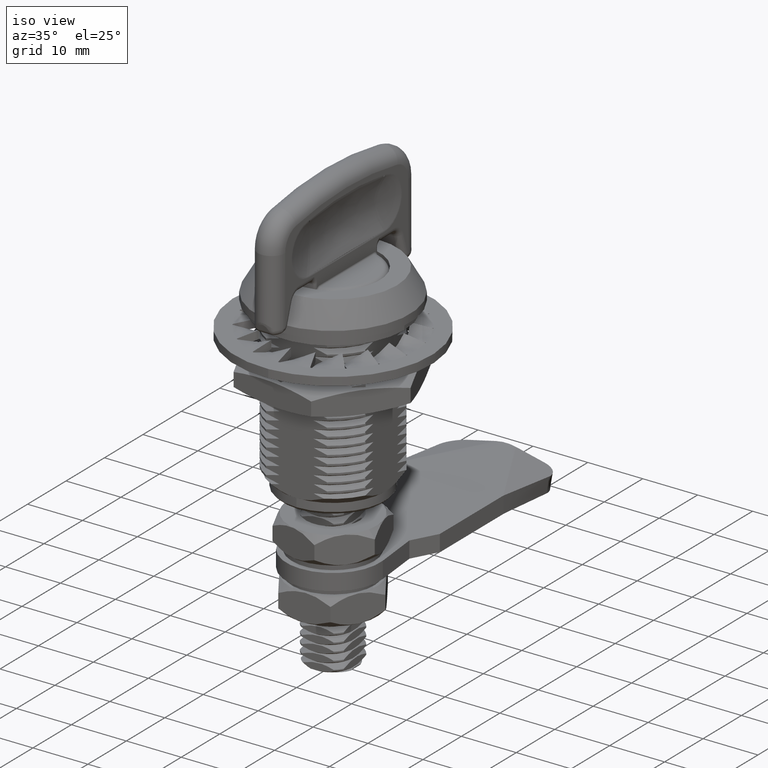
[diagram: clean part render]
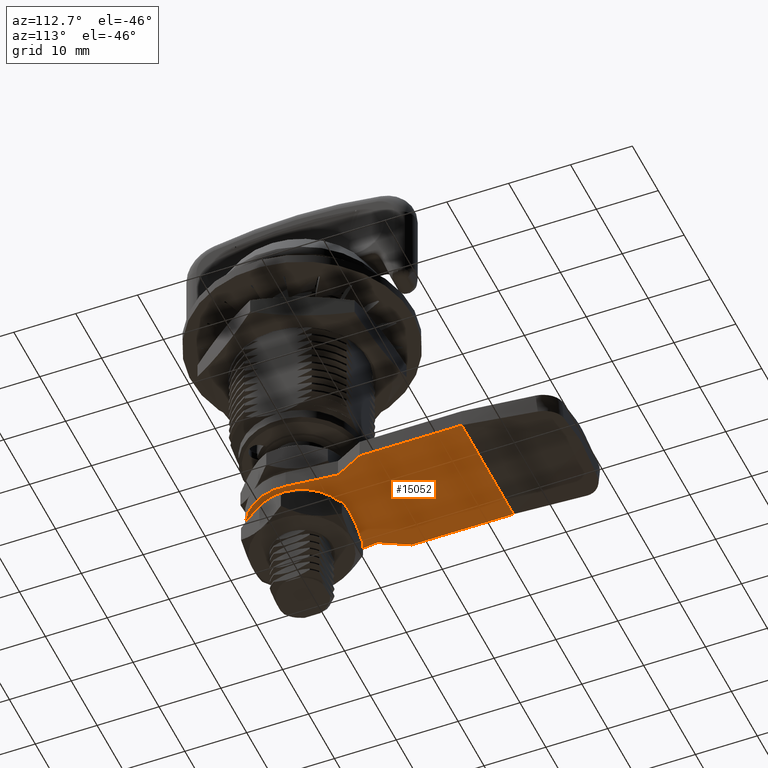
[diagram: tour spotlight — one face highlighted and labeled with its STEP entity id]
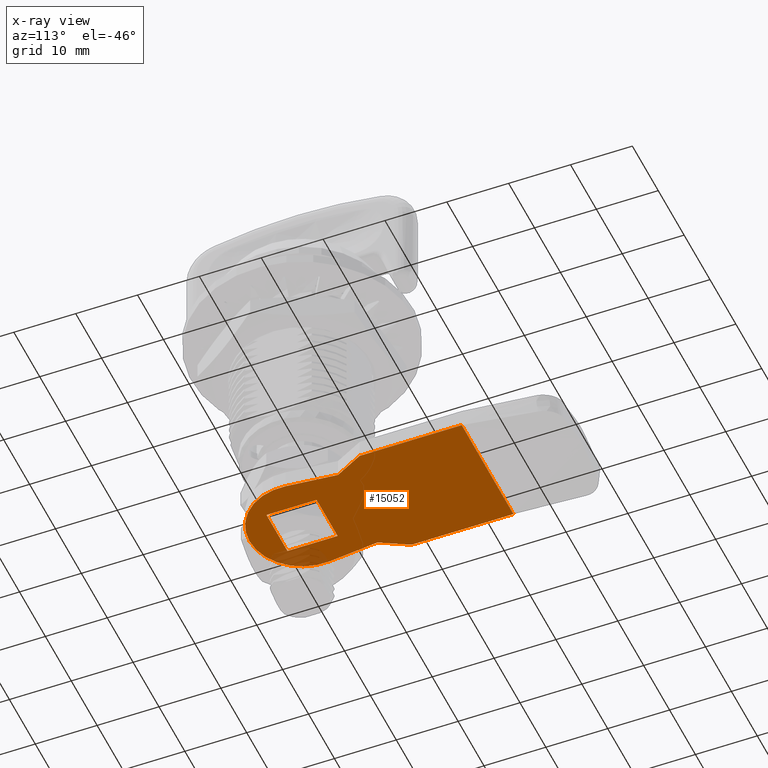
[diagram: x-ray of the same camera — body ghosted, this tour face saturated]
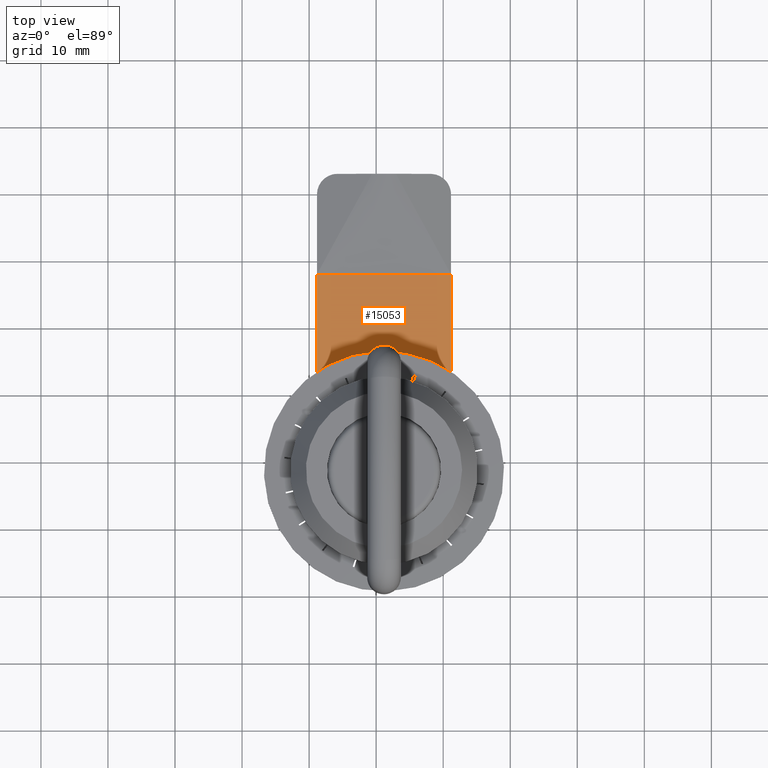
[diagram: tour spotlight — one face highlighted and labeled with its STEP entity id]
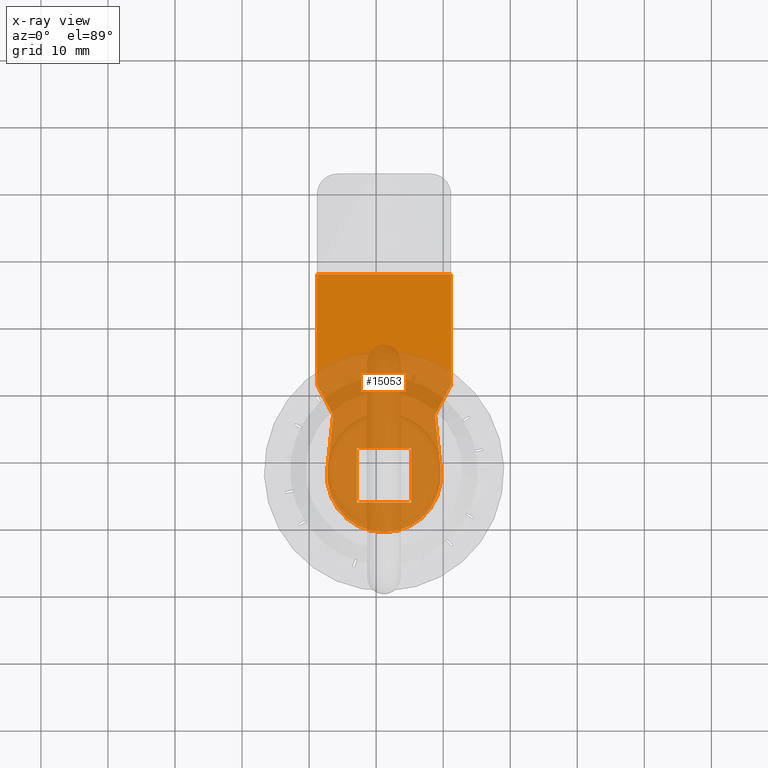
[diagram: x-ray of the same camera — body ghosted, this tour face saturated]
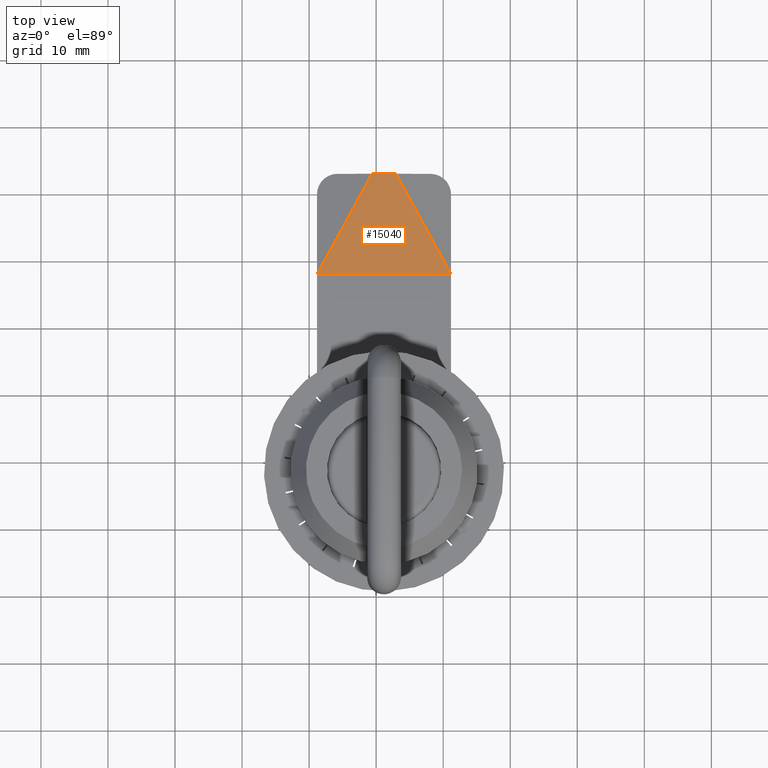
[diagram: tour spotlight — one face highlighted and labeled with its STEP entity id]
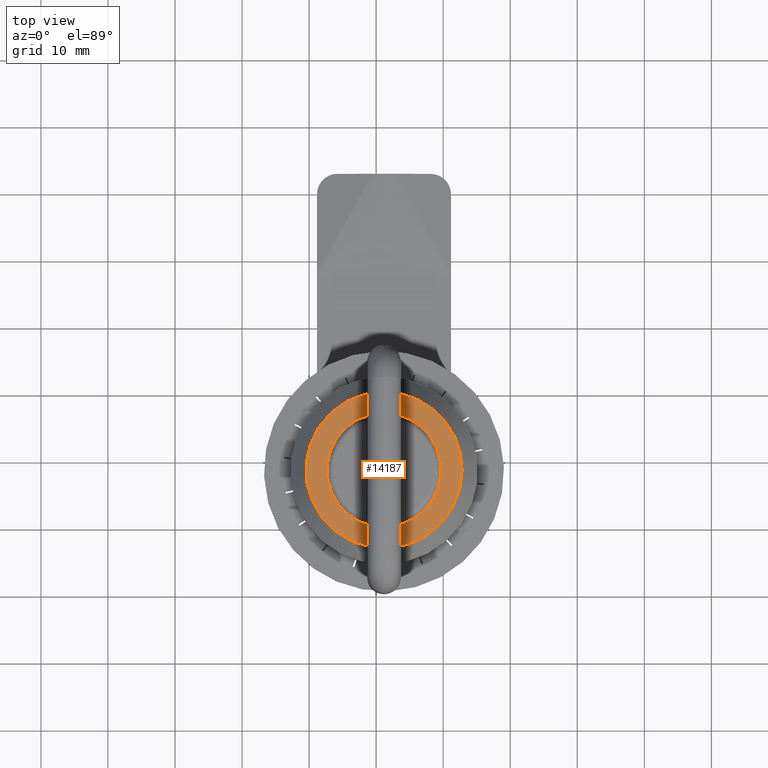
[diagram: tour spotlight — one face highlighted and labeled with its STEP entity id]
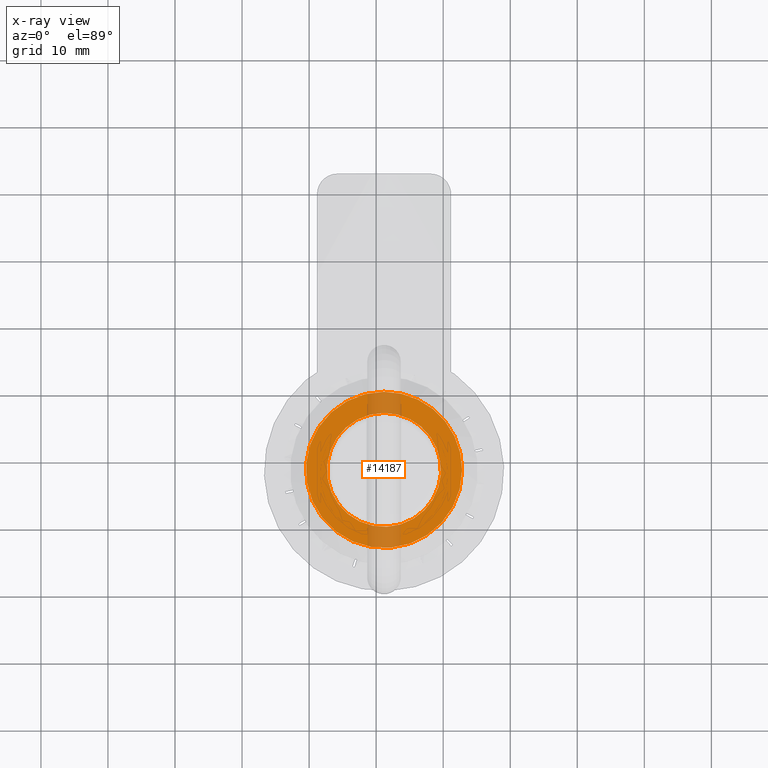
[diagram: x-ray of the same camera — body ghosted, this tour face saturated]
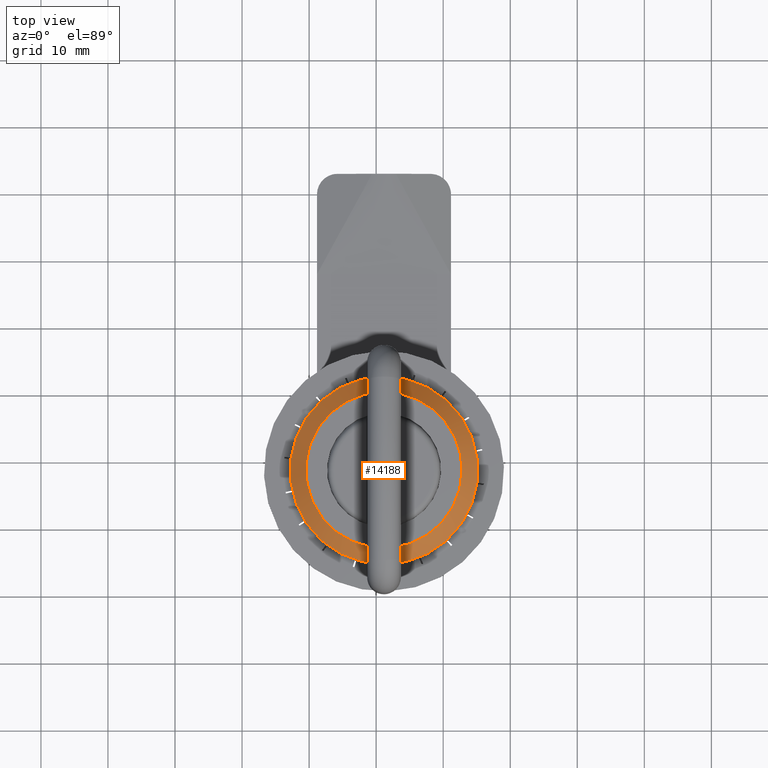
[diagram: tour spotlight — one face highlighted and labeled with its STEP entity id]
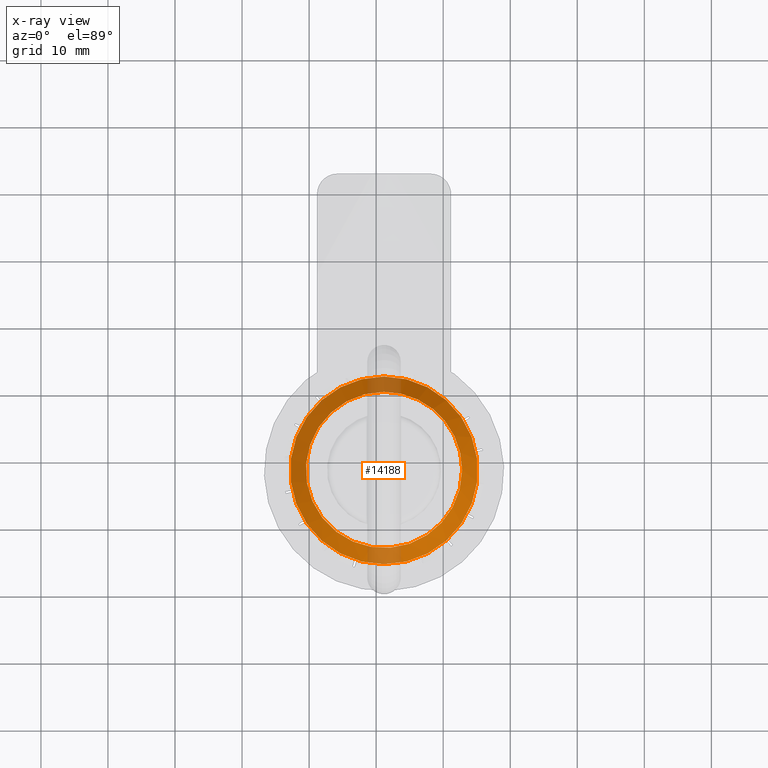
[diagram: x-ray of the same camera — body ghosted, this tour face saturated]
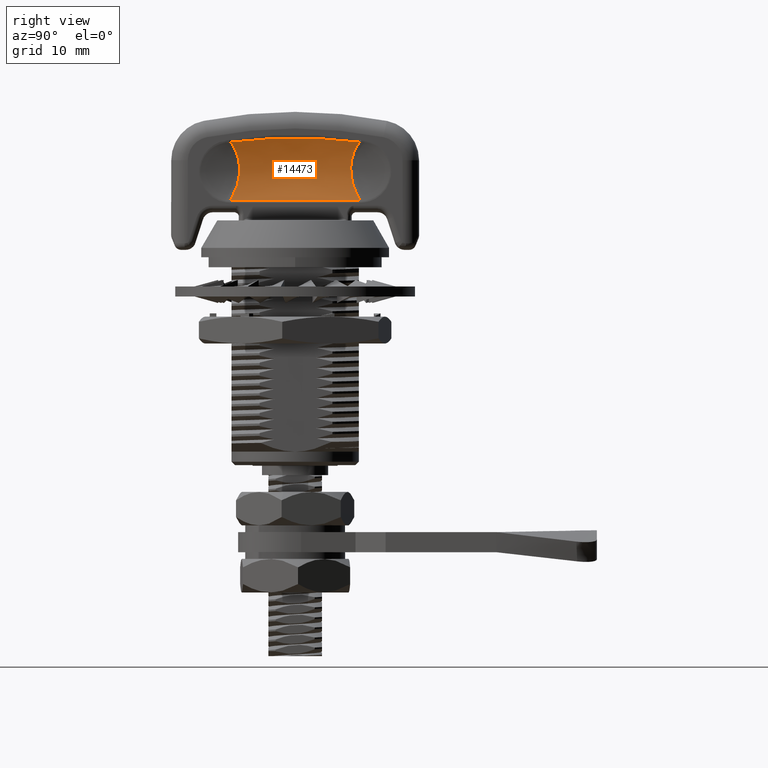
[diagram: tour spotlight — one face highlighted and labeled with its STEP entity id]
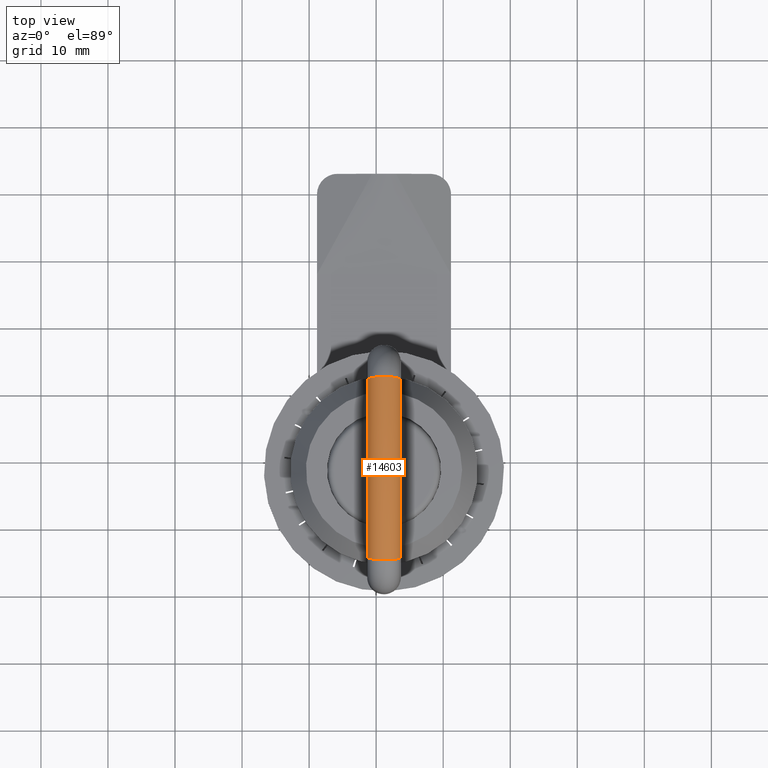
[diagram: tour spotlight — one face highlighted and labeled with its STEP entity id]
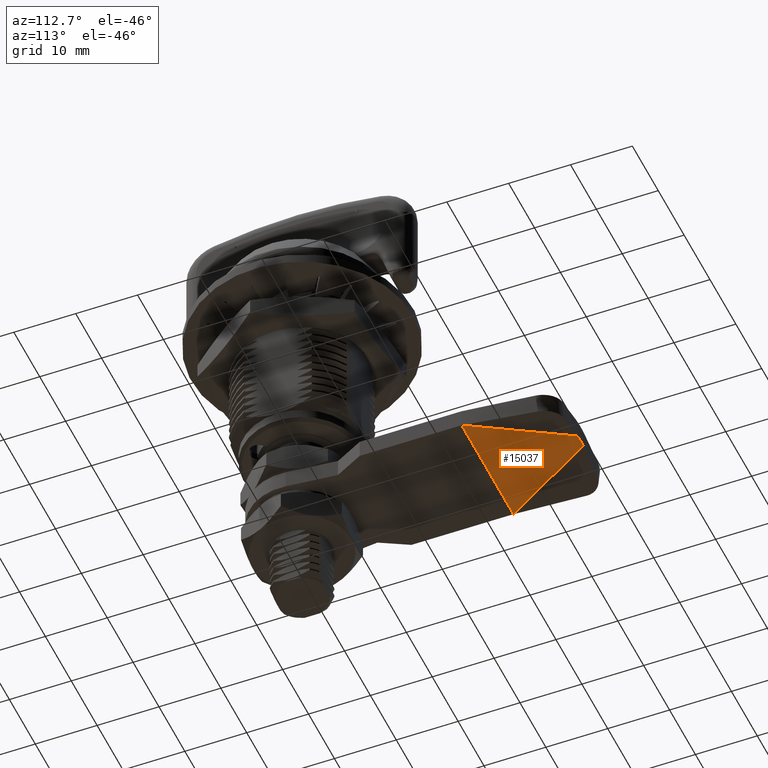
[diagram: tour spotlight — one face highlighted and labeled with its STEP entity id]
A machine part: a face-by-face anatomy tour. The part has 955 B-rep faces; the first image is the clean iso view, then the 8 largest visible faces are spotlighted one at a time (largest first), each with its STEP entity span.

Face 1 — auxiliary view, entity #15052. An x-ray twin of the same camera follows (body ghosted, this face saturated) — the face is partly hidden behind the body. In plain terms, the highlighted planar face has unit normal (0, 0, 1).
Definition (entity closure, byte-faithful):
#2684=LINE('',#84766,#3363);
#2691=LINE('',#84811,#3370);
#2694=LINE('',#84817,#3373);
#2697=LINE('',#84823,#3376);
#2700=LINE('',#84827,#3379);
#2703=LINE('',#84835,#3382);
#2706=LINE('',#84839,#3385);
#2709=LINE('',#84845,#3388);
#2712=LINE('',#84851,#3391);
#2715=LINE('',#84857,#3394);
#2718=LINE('',#84866,#3397);
#3363=VECTOR('',#18387,20.);
#3370=VECTOR('',#18398,8.1);
#3373=VECTOR('',#18403,8.1);
#3376=VECTOR('',#18408,8.1);
#3379=VECTOR('',#18413,8.1);
#3382=VECTOR('',#18418,5.1);
#3385=VECTOR('',#18423,16.5);
#3388=VECTOR('',#18428,16.5);
#3391=VECTOR('',#18433,5.1);
#3394=VECTOR('',#18438,8.15536633144091);
#3397=VECTOR('',#18449,8.15536633144091);
#3488=FACE_BOUND('',#5281,.T.);
#4355=FACE_OUTER_BOUND('',#5280,.T.);
#5280=EDGE_LOOP('',(#13928,#13929,#13930,#13931,#13932,#13933,#13934,#13935));
#5281=EDGE_LOOP('',(#13936,#13937,#13938,#13939));
#5558=CIRCLE('',#15959,8.5);
#7029=VERTEX_POINT('',#84725);
#7031=VERTEX_POINT('',#84765);
#7034=VERTEX_POINT('',#84808);
#7035=VERTEX_POINT('',#84810);
#7037=VERTEX_POINT('',#84816);
#7039=VERTEX_POINT('',#84822);
#7042=VERTEX_POINT('',#84832);
#7043=VERTEX_POINT('',#84834);
#7045=VERTEX_POINT('',#84843);
#7047=VERTEX_POINT('',#84849);
#7049=VERTEX_POINT('',#84855);
#7051=VERTEX_POINT('',#84861);
#9315=EDGE_CURVE('',#7031,#7029,#2684,.T.);
#9322=EDGE_CURVE('',#7035,#7034,#2691,.T.);
#9325=EDGE_CURVE('',#7037,#7035,#2694,.T.);
#9328=EDGE_CURVE('',#7039,#7037,#2697,.T.);
#9331=EDGE_CURVE('',#7034,#7039,#2700,.T.);
#9334=EDGE_CURVE('',#7042,#7043,#2703,.T.);
#9337=EDGE_CURVE('',#7029,#7042,#2706,.T.);
#9340=EDGE_CURVE('',#7045,#7031,#2709,.T.);
#9343=EDGE_CURVE('',#7047,#7045,#2712,.T.);
#9346=EDGE_CURVE('',#7049,#7047,#2715,.T.);
#9349=EDGE_CURVE('',#7051,#7049,#5558,.T.);
#9351=EDGE_CURVE('',#7043,#7051,#2718,.T.);
#13928=ORIENTED_EDGE('',*,*,#9351,.F.);
#13929=ORIENTED_EDGE('',*,*,#9334,.F.);
#13930=ORIENTED_EDGE('',*,*,#9337,.F.);
#13931=ORIENTED_EDGE('',*,*,#9315,.F.);
#13932=ORIENTED_EDGE('',*,*,#9340,.F.);
#13933=ORIENTED_EDGE('',*,*,#9343,.F.);
#13934=ORIENTED_EDGE('',*,*,#9346,.F.);
#13935=ORIENTED_EDGE('',*,*,#9349,.F.);
#13936=ORIENTED_EDGE('',*,*,#9322,.T.);
#13937=ORIENTED_EDGE('',*,*,#9331,.T.);
#13938=ORIENTED_EDGE('',*,*,#9328,.T.);
#13939=ORIENTED_EDGE('',*,*,#9325,.T.);
#14185=PLANE('',#15961);
#15052=ADVANCED_FACE('',(#4355,#3488),#14185,.F.);
#15959=AXIS2_PLACEMENT_3D('',#84863,#18444,#18445);
#15961=AXIS2_PLACEMENT_3D('',#84867,#18450,#18451);
#18387=DIRECTION('',(-1.,0.,0.));
#18398=DIRECTION('',(0.,1.,0.));
#18403=DIRECTION('',(1.,1.37064570941377E-16,0.));
#18408=DIRECTION('',(0.,-1.,0.));
#18413=DIRECTION('',(-1.,0.,0.));
#18418=DIRECTION('',(0.470588235294118,-0.88235294117647,0.));
#18423=DIRECTION('',(0.,-1.,0.));
#18428=DIRECTION('',(0.,1.,0.));
#18433=DIRECTION('',(0.470588235294118,0.88235294117647,0.));
#18438=DIRECTION('',(-0.104635456046765,0.994510644155147,0.));
#18444=DIRECTION('center_axis',(0.,0.,1.));
#18445=DIRECTION('ref_axis',(-0.994510644155147,0.104635456046764,0.));
#18449=DIRECTION('',(-0.104635456046765,-0.994510644155147,0.));
#18450=DIRECTION('center_axis',(0.,0.,1.));
#18451=DIRECTION('ref_axis',(1.,0.,0.));
#84725=CARTESIAN_POINT('',(-10.,30.,0.));
#84765=CARTESIAN_POINT('',(10.,30.,0.));
#84766=CARTESIAN_POINT('',(10.,30.,0.));
#84808=CARTESIAN_POINT('',(4.05,4.05,0.));
#84810=CARTESIAN_POINT('',(4.05,-4.05,0.));
#84811=CARTESIAN_POINT('',(4.05,8.44205728037755,0.));
#84816=CARTESIAN_POINT('',(-4.05,-4.05,0.));
#84817=CARTESIAN_POINT('',(2.025,-4.05,0.));
#84822=CARTESIAN_POINT('',(-4.05,4.05,0.));
#84823=CARTESIAN_POINT('',(-4.05,4.39205728037755,0.));
#84827=CARTESIAN_POINT('',(-2.025,4.05,0.));
#84832=CARTESIAN_POINT('',(-10.,13.5,0.));
#84834=CARTESIAN_POINT('',(-7.6,9.,0.));
#84835=CARTESIAN_POINT('',(-10.,13.5,0.));
#84839=CARTESIAN_POINT('',(-10.,30.,0.));
#84843=CARTESIAN_POINT('',(10.,13.5,0.));
#84845=CARTESIAN_POINT('',(10.,13.5,0.));
#84849=CARTESIAN_POINT('',(7.6,9.,0.));
#84851=CARTESIAN_POINT('',(7.6,9.,0.));
#84855=CARTESIAN_POINT('',(8.45334047531875,0.889401376397498,0.));
#84857=CARTESIAN_POINT('',(8.45334047531875,0.889401376397498,0.));
#84861=CARTESIAN_POINT('',(-8.45334047531875,0.889401376397498,0.));
#84863=CARTESIAN_POINT('Origin',(0.,0.,0.));
#84866=CARTESIAN_POINT('',(-7.6,9.,0.));
#84867=CARTESIAN_POINT('Origin',(-1.54923644048016E-16,12.8341145607551,
0.));

Face 2 — top view, entity #15053. An x-ray twin of the same camera follows (body ghosted, this face saturated) — the face is partly hidden behind the body. In plain terms, the highlighted planar face has unit normal (0, 0, 1).
Definition (entity closure, byte-faithful):
#2688=LINE('',#84803,#3367);
#2689=LINE('',#84807,#3368);
#2693=LINE('',#84815,#3372);
#2696=LINE('',#84821,#3375);
#2699=LINE('',#84826,#3378);
#2701=LINE('',#84831,#3380);
#2705=LINE('',#84838,#3384);
#2707=LINE('',#84842,#3386);
#2710=LINE('',#84848,#3389);
#2713=LINE('',#84854,#3392);
#2717=LINE('',#84865,#3396);
#3367=VECTOR('',#18393,20.);
#3368=VECTOR('',#18396,8.1);
#3372=VECTOR('',#18402,8.1);
#3375=VECTOR('',#18407,8.1);
#3378=VECTOR('',#18412,8.1);
#3380=VECTOR('',#18416,5.1);
#3384=VECTOR('',#18422,16.5);
#3386=VECTOR('',#18426,16.5);
#3389=VECTOR('',#18431,5.1);
#3392=VECTOR('',#18436,8.15536633144091);
#3396=VECTOR('',#18448,8.15536633144091);
#3489=FACE_BOUND('',#5283,.T.);
#4356=FACE_OUTER_BOUND('',#5282,.T.);
#5282=EDGE_LOOP('',(#13940,#13941,#13942,#13943,#13944,#13945,#13946,#13947));
#5283=EDGE_LOOP('',(#13948,#13949,#13950,#13951));
#5557=CIRCLE('',#15958,8.5);
#7021=VERTEX_POINT('',#84660);
#7030=VERTEX_POINT('',#84729);
#7032=VERTEX_POINT('',#84805);
#7033=VERTEX_POINT('',#84806);
#7036=VERTEX_POINT('',#84814);
#7038=VERTEX_POINT('',#84820);
#7040=VERTEX_POINT('',#84829);
#7041=VERTEX_POINT('',#84830);
#7044=VERTEX_POINT('',#84841);
#7046=VERTEX_POINT('',#84847);
#7048=VERTEX_POINT('',#84853);
#7050=VERTEX_POINT('',#84859);
#9319=EDGE_CURVE('',#7030,#7021,#2688,.T.);
#9320=EDGE_CURVE('',#7032,#7033,#2689,.T.);
#9324=EDGE_CURVE('',#7033,#7036,#2693,.T.);
#9327=EDGE_CURVE('',#7036,#7038,#2696,.T.);
#9330=EDGE_CURVE('',#7038,#7032,#2699,.T.);
#9332=EDGE_CURVE('',#7040,#7041,#2701,.T.);
#9336=EDGE_CURVE('',#7041,#7030,#2705,.T.);
#9338=EDGE_CURVE('',#7021,#7044,#2707,.T.);
#9341=EDGE_CURVE('',#7044,#7046,#2710,.T.);
#9344=EDGE_CURVE('',#7046,#7048,#2713,.T.);
#9347=EDGE_CURVE('',#7048,#7050,#5557,.T.);
#9350=EDGE_CURVE('',#7050,#7040,#2717,.T.);
#13940=ORIENTED_EDGE('',*,*,#9332,.F.);
#13941=ORIENTED_EDGE('',*,*,#9350,.F.);
#13942=ORIENTED_EDGE('',*,*,#9347,.F.);
#13943=ORIENTED_EDGE('',*,*,#9344,.F.);
#13944=ORIENTED_EDGE('',*,*,#9341,.F.);
#13945=ORIENTED_EDGE('',*,*,#9338,.F.);
#13946=ORIENTED_EDGE('',*,*,#9319,.F.);
#13947=ORIENTED_EDGE('',*,*,#9336,.F.);
#13948=ORIENTED_EDGE('',*,*,#9320,.T.);
#13949=ORIENTED_EDGE('',*,*,#9324,.T.);
#13950=ORIENTED_EDGE('',*,*,#9327,.T.);
#13951=ORIENTED_EDGE('',*,*,#9330,.T.);
#14186=PLANE('',#15962);
#15053=ADVANCED_FACE('',(#4356,#3489),#14186,.T.);
#15958=AXIS2_PLACEMENT_3D('',#84860,#18441,#18442);
#15962=AXIS2_PLACEMENT_3D('',#84868,#18452,#18453);
#18393=DIRECTION('',(1.,0.,0.));
#18396=DIRECTION('',(0.,-1.,0.));
#18402=DIRECTION('',(-1.,-1.37064570941377E-16,0.));
#18407=DIRECTION('',(0.,1.,0.));
#18412=DIRECTION('',(1.,0.,0.));
#18416=DIRECTION('',(-0.470588235294118,0.88235294117647,0.));
#18422=DIRECTION('',(0.,1.,0.));
#18426=DIRECTION('',(0.,-1.,0.));
#18431=DIRECTION('',(-0.470588235294118,-0.88235294117647,0.));
#18436=DIRECTION('',(0.104635456046765,-0.994510644155147,0.));
#18441=DIRECTION('center_axis',(0.,0.,-1.));
#18442=DIRECTION('ref_axis',(-0.994510644155147,0.104635456046764,0.));
#18448=DIRECTION('',(0.104635456046765,0.994510644155147,0.));
#18452=DIRECTION('center_axis',(0.,0.,1.));
#18453=DIRECTION('ref_axis',(1.,0.,0.));
#84660=CARTESIAN_POINT('',(10.,30.,3.));
#84729=CARTESIAN_POINT('',(-10.,30.,3.));
#84803=CARTESIAN_POINT('',(10.,30.,3.));
#84805=CARTESIAN_POINT('',(4.05,4.05,3.));
#84806=CARTESIAN_POINT('',(4.05,-4.05,3.));
#84807=CARTESIAN_POINT('',(4.05,8.44205728037755,3.));
#84814=CARTESIAN_POINT('',(-4.05,-4.05,3.));
#84815=CARTESIAN_POINT('',(2.025,-4.05,3.));
#84820=CARTESIAN_POINT('',(-4.05,4.05,3.));
#84821=CARTESIAN_POINT('',(-4.05,4.39205728037755,3.));
#84826=CARTESIAN_POINT('',(-2.025,4.05,3.));
#84829=CARTESIAN_POINT('',(-7.6,9.,3.));
#84830=CARTESIAN_POINT('',(-10.,13.5,3.));
#84831=CARTESIAN_POINT('',(-10.,13.5,3.));
#84838=CARTESIAN_POINT('',(-10.,30.,3.));
#84841=CARTESIAN_POINT('',(10.,13.5,3.));
#84842=CARTESIAN_POINT('',(10.,13.5,3.));
#84847=CARTESIAN_POINT('',(7.6,9.,3.));
#84848=CARTESIAN_POINT('',(7.6,9.,3.));
#84853=CARTESIAN_POINT('',(8.45334047531875,0.889401376397498,3.));
#84854=CARTESIAN_POINT('',(8.45334047531875,0.889401376397498,3.));
#84859=CARTESIAN_POINT('',(-8.45334047531875,0.889401376397498,3.));
#84860=CARTESIAN_POINT('Origin',(0.,0.,3.));
#84865=CARTESIAN_POINT('',(-7.6,9.,3.));
#84868=CARTESIAN_POINT('Origin',(0.,12.8341145607551,3.));

Face 3 — top view, entity #15040. In plain terms, the highlighted face is a freeform B-spline surface patch.
Definition (entity closure, byte-faithful):
#192=ELLIPSE('',#15943,6.96347798746227,6.01095277535137);
#499=B_SPLINE_SURFACE_WITH_KNOTS('',3,3,((#84787,#84788,#84789,#84790),
(#84791,#84792,#84793,#84794),(#84795,#84796,#84797,#84798),(#84799,#84800,
#84801,#84802)),.UNSPECIFIED.,.F.,.F.,.F.,(4,4),(4,4),(0.,1.),(0.,1.),
 .UNSPECIFIED.);
#2674=LINE('',#84661,#3353);
#2682=LINE('',#84731,#3361);
#2688=LINE('',#84803,#3367);
#3353=VECTOR('',#18363,17.1055381208375);
#3361=VECTOR('',#18385,17.1055381208375);
#3367=VECTOR('',#18393,20.);
#4343=FACE_OUTER_BOUND('',#5268,.T.);
#5268=EDGE_LOOP('',(#13880,#13881,#13882,#13883));
#7020=VERTEX_POINT('',#84658);
#7021=VERTEX_POINT('',#84660);
#7026=VERTEX_POINT('',#84672);
#7030=VERTEX_POINT('',#84729);
#9299=EDGE_CURVE('',#7021,#7020,#2674,.T.);
#9306=EDGE_CURVE('',#7020,#7026,#192,.T.);
#9313=EDGE_CURVE('',#7030,#7026,#2682,.T.);
#9319=EDGE_CURVE('',#7030,#7021,#2688,.T.);
#13880=ORIENTED_EDGE('',*,*,#9319,.T.);
#13881=ORIENTED_EDGE('',*,*,#9299,.T.);
#13882=ORIENTED_EDGE('',*,*,#9306,.T.);
#13883=ORIENTED_EDGE('',*,*,#9313,.F.);
#15040=ADVANCED_FACE('',(#4343),#499,.F.);
#15943=AXIS2_PLACEMENT_3D('',#84674,#18374,#18375);
#18363=DIRECTION('',(-0.480621088621186,0.876908980824603,0.0058316825824785));
#18374=DIRECTION('center_axis',(0.,-1.,0.));
#18375=DIRECTION('ref_axis',(1.,0.,-4.81639417379117E-14));
#18385=DIRECTION('',(0.480621088621187,0.876908980824602,0.00583168258247857));
#18393=DIRECTION('',(1.,0.,0.));
#84658=CARTESIAN_POINT('',(1.77871764691188,45.,3.09975406872321));
#84660=CARTESIAN_POINT('',(10.,30.,3.));
#84661=CARTESIAN_POINT('',(10.,30.,3.));
#84672=CARTESIAN_POINT('',(-1.77871764691187,45.,3.09975406872321));
#84674=CARTESIAN_POINT('Origin',(1.00475183728577E-13,45.,-2.71179237158873));
#84729=CARTESIAN_POINT('',(-10.,30.,3.));
#84731=CARTESIAN_POINT('',(-10.,30.,3.));
#84787=CARTESIAN_POINT('Ctrl Pts',(10.,30.,3.));
#84788=CARTESIAN_POINT('Ctrl Pts',(7.25957254897063,35.,3.03325135624107));
#84789=CARTESIAN_POINT('Ctrl Pts',(4.51914509794125,40.,3.06650271248214));
#84790=CARTESIAN_POINT('Ctrl Pts',(1.77871764691188,45.,3.09975406872321));
#84791=CARTESIAN_POINT('Ctrl Pts',(3.33333333333333,30.,3.));
#84792=CARTESIAN_POINT('Ctrl Pts',(2.42651480761471,35.,3.12219661530419));
#84793=CARTESIAN_POINT('Ctrl Pts',(1.51966226284821,40.,3.24343256680492));
#84794=CARTESIAN_POINT('Ctrl Pts',(0.61284373712959,45.,3.36562918210911));
#84795=CARTESIAN_POINT('Ctrl Pts',(-3.33333333333333,30.,3.));
#84796=CARTESIAN_POINT('Ctrl Pts',(-2.42651480761471,35.,3.12219661530419));
#84797=CARTESIAN_POINT('Ctrl Pts',(-1.51966226284821,40.,3.24343256680492));
#84798=CARTESIAN_POINT('Ctrl Pts',(-0.612843737129586,45.,3.36562918210911));
#84799=CARTESIAN_POINT('Ctrl Pts',(-10.,30.,3.));
#84800=CARTESIAN_POINT('Ctrl Pts',(-7.25957254897062,35.,3.03325135624107));
#84801=CARTESIAN_POINT('Ctrl Pts',(-4.51914509794125,40.,3.06650271248214));
#84802=CARTESIAN_POINT('Ctrl Pts',(-1.77871764691187,45.,3.09975406872321));
#84803=CARTESIAN_POINT('',(10.,30.,3.));

Face 4 — top view, entity #14187. An x-ray twin of the same camera follows (body ghosted, this face saturated) — the face is partly hidden behind the body. In plain terms, the highlighted planar face has unit normal (0, 0, 1).
Definition (entity closure, byte-faithful):
#3430=FACE_BOUND('',#4358,.T.);
#3490=FACE_OUTER_BOUND('',#4357,.T.);
#4357=EDGE_LOOP('',(#9352));
#4358=EDGE_LOOP('',(#9353));
#5284=CIRCLE('',#15065,11.65);
#5285=CIRCLE('',#15066,8.5);
#5559=VERTEX_POINT('',#18480);
#5560=VERTEX_POINT('',#18482);
#7052=EDGE_CURVE('',#5559,#5559,#5284,.T.);
#7053=EDGE_CURVE('',#5560,#5560,#5285,.T.);
#9352=ORIENTED_EDGE('',*,*,#7052,.F.);
#9353=ORIENTED_EDGE('',*,*,#7053,.T.);
#13952=PLANE('',#15064);
#14187=ADVANCED_FACE('',(#3490,#3430),#13952,.T.);
#15064=AXIS2_PLACEMENT_3D('',#18479,#15977,#15978);
#15065=AXIS2_PLACEMENT_3D('',#18481,#15979,#15980);
#15066=AXIS2_PLACEMENT_3D('',#18483,#15981,#15982);
#15977=DIRECTION('center_axis',(0.,1.,0.));
#15978=DIRECTION('ref_axis',(0.,0.,1.));
#15979=DIRECTION('center_axis',(0.,-1.,0.));
#15980=DIRECTION('ref_axis',(1.,0.,0.));
#15981=DIRECTION('center_axis',(0.,-1.,0.));
#15982=DIRECTION('ref_axis',(1.,0.,0.));
#18479=CARTESIAN_POINT('Origin',(-11.65,5.5,0.));
#18480=CARTESIAN_POINT('',(11.65,5.5,1.42671352100667E-15));
#18481=CARTESIAN_POINT('Origin',(0.,5.5,0.));
#18482=CARTESIAN_POINT('',(-1.04094977927525E-15,5.5,-8.5));
#18483=CARTESIAN_POINT('Origin',(0.,5.5,0.));

Face 5 — top view, entity #14188. An x-ray twin of the same camera follows (body ghosted, this face saturated) — the face is partly hidden behind the body. In plain terms, the highlighted conical surface has half-angle 29.82 deg.
Definition (entity closure, byte-faithful):
#3398=CONICAL_SURFACE('',#15067,12.825,0.520458449451149);
#3431=FACE_BOUND('',#4360,.T.);
#3491=FACE_OUTER_BOUND('',#4359,.T.);
#4359=EDGE_LOOP('',(#9354));
#4360=EDGE_LOOP('',(#9355));
#5284=CIRCLE('',#15065,11.65);
#5286=CIRCLE('',#15068,14.);
#5559=VERTEX_POINT('',#18480);
#5561=VERTEX_POINT('',#18485);
#7052=EDGE_CURVE('',#5559,#5559,#5284,.T.);
#7054=EDGE_CURVE('',#5561,#5561,#5286,.T.);
#9354=ORIENTED_EDGE('',*,*,#7052,.T.);
#9355=ORIENTED_EDGE('',*,*,#7054,.F.);
#14188=ADVANCED_FACE('',(#3491,#3431),#3398,.T.);
#15065=AXIS2_PLACEMENT_3D('',#18481,#15979,#15980);
#15067=AXIS2_PLACEMENT_3D('',#18484,#15983,#15984);
#15068=AXIS2_PLACEMENT_3D('',#18486,#15985,#15986);
#15979=DIRECTION('center_axis',(0.,-1.,0.));
#15980=DIRECTION('ref_axis',(1.,0.,0.));
#15983=DIRECTION('center_axis',(0.,-1.,0.));
#15984=DIRECTION('ref_axis',(-1.,0.,0.));
#15985=DIRECTION('center_axis',(0.,-1.,0.));
#15986=DIRECTION('ref_axis',(1.,0.,0.));
#18480=CARTESIAN_POINT('',(11.65,5.5,1.42671352100667E-15));
#18481=CARTESIAN_POINT('Origin',(0.,5.5,0.));
#18484=CARTESIAN_POINT('Origin',(0.,3.45,0.));
#18485=CARTESIAN_POINT('',(-1.71450551880629E-15,1.4,-14.));
#18486=CARTESIAN_POINT('Origin',(0.,1.4,0.));

Face 6 — right view, entity #14473. In plain terms, the highlighted face is a freeform B-spline surface patch.
Definition (entity closure, byte-faithful):
#385=B_SPLINE_SURFACE_WITH_KNOTS('',3,3,((#62037,#62038,#62039,#62040,#62041),
(#62042,#62043,#62044,#62045,#62046),(#62047,#62048,#62049,#62050,#62051),
(#62052,#62053,#62054,#62055,#62056),(#62057,#62058,#62059,#62060,#62061)),
 .UNSPECIFIED.,.F.,.F.,.F.,(4,1,4),(4,1,4),(0.006979582228411,0.464069123009,
0.9886932273524),(0.2043446376719,0.5,0.7956553468071),.UNSPECIFIED.);
#1125=B_SPLINE_CURVE_WITH_KNOTS('',3,(#60722,#60723,#60724,#60725,#60726,
#60727,#60728,#60729,#60730,#60731,#60732,#60733,#60734,#60735,#60736,#60737,
#60738,#60739,#60740,#60741,#60742,#60743,#60744,#60745,#60746,#60747,#60748,
#60749,#60750,#60751,#60752),.UNSPECIFIED.,.F.,.F.,(4,2,2,2,2,2,2,3,2,2,
2,2,2,2,4),(0.,0.069319193843239,0.140653932672028,0.21421115969703,0.291443439285025,
0.370567712918879,0.451421630389557,0.5,0.58086038594509,0.660597933520571,
0.738214419507719,0.812153750054277,0.884094258191733,0.953257130332187,
1.),.UNSPECIFIED.);
#1128=B_SPLINE_CURVE_WITH_KNOTS('',3,(#61441,#61442,#61443,#61444,#61445,
#61446,#61447,#61448,#61449,#61450,#61451,#61452,#61453,#61454,#61455,#61456,
#61457,#61458,#61459,#61460,#61461,#61462,#61463,#61464,#61465,#61466),
 .UNSPECIFIED.,.F.,.F.,(4,2,2,2,2,2,2,2,2,2,2,2,4),(0.,0.0868058799556991,
0.173284627651373,0.259256416158047,0.344935476775756,0.430113189959082,
0.5,0.5851013728066,0.670573586658723,0.756578676801069,0.842865492410273,
0.9295991476465,1.),.UNSPECIFIED.);
#1132=B_SPLINE_CURVE_WITH_KNOTS('',3,(#62030,#62031,#62032,#62033,#62034,
#62035,#62036),.UNSPECIFIED.,.F.,.F.,(4,3,4),(0.,0.4658396621595,1.),
 .UNSPECIFIED.);
#1133=B_SPLINE_CURVE_WITH_KNOTS('',3,(#62062,#62063,#62064,#62065,#62066,
#62067,#62068),.UNSPECIFIED.,.F.,.F.,(4,3,4),(0.,0.465839693403154,1.),
 .UNSPECIFIED.);
#3776=FACE_OUTER_BOUND('',#4654,.T.);
#4654=EDGE_LOOP('',(#11008,#11009,#11010,#11011));
#6119=VERTEX_POINT('',#60670);
#6120=VERTEX_POINT('',#60721);
#6123=VERTEX_POINT('',#61368);
#6124=VERTEX_POINT('',#61440);
#7879=EDGE_CURVE('',#6119,#6120,#1125,.T.);
#7887=EDGE_CURVE('',#6123,#6124,#1128,.T.);
#7893=EDGE_CURVE('',#6124,#6119,#1132,.T.);
#7894=EDGE_CURVE('',#6123,#6120,#1133,.T.);
#11008=ORIENTED_EDGE('',*,*,#7879,.F.);
#11009=ORIENTED_EDGE('',*,*,#7893,.F.);
#11010=ORIENTED_EDGE('',*,*,#7887,.F.);
#11011=ORIENTED_EDGE('',*,*,#7894,.T.);
#14473=ADVANCED_FACE('',(#3776),#385,.T.);
#60670=CARTESIAN_POINT('',(2.432995367131,49.16623146819,9.619541620929));
#60721=CARTESIAN_POINT('',(2.432995047707,49.16623059494,-9.619541851358));
#60722=CARTESIAN_POINT('Ctrl Pts',(2.43299536715048,49.1662314681826,9.61954162092786));
#60723=CARTESIAN_POINT('Ctrl Pts',(2.42860653391664,49.2227352657187,9.17708122105945));
#60724=CARTESIAN_POINT('Ctrl Pts',(2.42444757794097,49.2754647174416,8.73430633889737));
#60725=CARTESIAN_POINT('Ctrl Pts',(2.41661787147964,49.3748026622026,7.8351877079548));
#60726=CARTESIAN_POINT('Ctrl Pts',(2.41296460121475,49.4211883393909,7.37882364116998));
#60727=CARTESIAN_POINT('Ctrl Pts',(2.40627323696328,49.507231870799,6.4511434826635));
#60728=CARTESIAN_POINT('Ctrl Pts',(2.40325756536348,49.5466347514815,5.97980437421912));
#60729=CARTESIAN_POINT('Ctrl Pts',(2.39788205877728,49.6185157945678,5.01286564419177));
#60730=CARTESIAN_POINT('Ctrl Pts',(2.39556220018934,49.6505492261656,4.51723014864718));
#60731=CARTESIAN_POINT('Ctrl Pts',(2.39170798015592,49.7055281474613,3.5132150288358));
#60732=CARTESIAN_POINT('Ctrl Pts',(2.39019368620765,49.7282311455922,3.00482047264591));
#60733=CARTESIAN_POINT('Ctrl Pts',(2.3879254988059,49.7635453759042,1.97656745079578));
#60734=CARTESIAN_POINT('Ctrl Pts',(2.38718825418344,49.7759243893826,1.45670115815919));
#60735=CARTESIAN_POINT('Ctrl Pts',(2.38656262080528,49.7867741175188,0.624520316337054));
#60736=CARTESIAN_POINT('Ctrl Pts',(2.38645259988968,49.78882415335,0.312194904447235));
#60737=CARTESIAN_POINT('Ctrl Pts',(2.38645273263657,49.7888240670876,-7.05424919410579E-5));
#60738=CARTESIAN_POINT('Ctrl Pts',(2.38645295359753,49.7888239235272,-0.519847240485623));
#60739=CARTESIAN_POINT('Ctrl Pts',(2.38675843236262,49.7831429884638,-1.03978395881963));
#60740=CARTESIAN_POINT('Ctrl Pts',(2.38810426258182,49.7608373557309,-2.07229896877264));
#60741=CARTESIAN_POINT('Ctrl Pts',(2.38913507763052,49.7443664983157,-2.58487927485322));
#60742=CARTESIAN_POINT('Ctrl Pts',(2.39199406837638,49.7014628569406,-3.59593370760889));
#60743=CARTESIAN_POINT('Ctrl Pts',(2.39380088192651,49.6753073667628,-4.09442056162408));
#60744=CARTESIAN_POINT('Ctrl Pts',(2.39816812362896,49.6146935137781,-5.06711578510958));
#60745=CARTESIAN_POINT('Ctrl Pts',(2.40068913351062,49.5806876335643,-5.54135582696416));
#60746=CARTESIAN_POINT('Ctrl Pts',(2.40644487773425,49.5049944055035,-6.47629001156366));
#60747=CARTESIAN_POINT('Ctrl Pts',(2.40965879585187,49.4635399319261,-6.93700391175505));
#60748=CARTESIAN_POINT('Ctrl Pts',(2.41665689754325,49.3742304717471,-7.83991717379516));
#60749=CARTESIAN_POINT('Ctrl Pts',(2.42041445400446,49.3266846326256,-8.28214475165772));
#60750=CARTESIAN_POINT('Ctrl Pts',(2.42718006364228,49.2407162023253,-9.02268828559361));
#60751=CARTESIAN_POINT('Ctrl Pts',(2.43003564216775,49.2043318676506,-9.32118573060527));
#60752=CARTESIAN_POINT('Ctrl Pts',(2.4329950477275,49.1662305949322,-9.6195418513568));
#61368=CARTESIAN_POINT('',(2.451885671522,40.41598782876,-9.663605581321));
#61440=CARTESIAN_POINT('',(2.451884703507,40.41599082232,9.66360482934));
#61441=CARTESIAN_POINT('Ctrl Pts',(2.45188567152349,40.4159878287605,-9.66360558132099));
#61442=CARTESIAN_POINT('Ctrl Pts',(2.44594551285559,40.4242453590332,-9.10416851830255));
#61443=CARTESIAN_POINT('Ctrl Pts',(2.43996582528498,40.4315450898108,-8.54478487209046));
#61444=CARTESIAN_POINT('Ctrl Pts',(2.42847060588164,40.4444440069662,-7.42820944607527));
#61445=CARTESIAN_POINT('Ctrl Pts',(2.42295347619559,40.4500494393574,-6.87101741754525));
#61446=CARTESIAN_POINT('Ctrl Pts',(2.41281344250309,40.4597549575418,-5.75996480301599));
#61447=CARTESIAN_POINT('Ctrl Pts',(2.408185525867,40.4638636211769,-5.20610391113984));
#61448=CARTESIAN_POINT('Ctrl Pts',(2.40012443109603,40.4707455542052,-4.1003168472833));
#61449=CARTESIAN_POINT('Ctrl Pts',(2.39668728929341,40.4735232930216,-3.54839059067514));
#61450=CARTESIAN_POINT('Ctrl Pts',(2.39123317305179,40.4778397967094,-2.44780067218404));
#61451=CARTESIAN_POINT('Ctrl Pts',(2.38920803135463,40.4793856932218,-1.8991369029584));
#61452=CARTESIAN_POINT('Ctrl Pts',(2.38690720246631,40.481134895553,-0.900317743016824));
#61453=CARTESIAN_POINT('Ctrl Pts',(2.38638189285906,40.4815289963411,-0.45015991989355));
#61454=CARTESIAN_POINT('Ctrl Pts',(2.38638175306549,40.4815292623387,0.548159210629533));
#61455=CARTESIAN_POINT('Ctrl Pts',(2.38716179004956,40.4809458265018,1.09631748954118));
#61456=CARTESIAN_POINT('Ctrl Pts',(2.39023130261242,40.4786016579517,2.19504132533811));
#61457=CARTESIAN_POINT('Ctrl Pts',(2.39252730777685,40.476835809616,2.74560687255381));
#61458=CARTESIAN_POINT('Ctrl Pts',(2.39850065138215,40.4720562612148,3.85020662694253));
#61459=CARTESIAN_POINT('Ctrl Pts',(2.4021864883177,40.4690348781332,4.40424097214962));
#61460=CARTESIAN_POINT('Ctrl Pts',(2.41070092353204,40.4616336940069,5.51417652190397));
#61461=CARTESIAN_POINT('Ctrl Pts',(2.41553317134348,40.4572495084651,6.07007781445448));
#61462=CARTESIAN_POINT('Ctrl Pts',(2.42601339564236,40.4469530665669,7.1848275362475));
#61463=CARTESIAN_POINT('Ctrl Pts',(2.43166541857233,40.4410330698592,7.74367624386766));
#61464=CARTESIAN_POINT('Ctrl Pts',(2.4422225931482,40.4287544482042,8.75621649512147));
#61465=CARTESIAN_POINT('Ctrl Pts',(2.44706706404993,40.422687897042,9.20989306909039));
#61466=CARTESIAN_POINT('Ctrl Pts',(2.45188470350738,40.4159908223201,9.66360482934));
#62030=CARTESIAN_POINT('Ctrl Pts',(2.45188470350936,40.4159908223208,9.66360482933999));
#62031=CARTESIAN_POINT('Ctrl Pts',(1.97701058458659,41.8757279180522,8.81179153941905));
#62032=CARTESIAN_POINT('Ctrl Pts',(1.707050223797,43.360900303596,8.35360010631316));
#62033=CARTESIAN_POINT('Ctrl Pts',(1.67080072278432,44.7702670984084,8.28902919958014));
#62034=CARTESIAN_POINT('Ctrl Pts',(1.62923482086493,46.386333535878,8.21498823622531));
#62035=CARTESIAN_POINT('Ctrl Pts',(1.89496017894254,47.9027281840092,8.65849212832225));
#62036=CARTESIAN_POINT('Ctrl Pts',(2.43299536715142,49.1662314681822,9.6195416209278));
#62037=CARTESIAN_POINT('Ctrl Pts',(2.477837025501,40.33849546709,-9.903536925587));
#62038=CARTESIAN_POINT('Ctrl Pts',(2.46987974321,40.33444470324,-6.6025050677));
#62039=CARTESIAN_POINT('Ctrl Pts',(2.461901113098,40.33037996761,-1.73306162754E-7));
#62040=CARTESIAN_POINT('Ctrl Pts',(2.46987974279,40.33444470303,6.602504721086));
#62041=CARTESIAN_POINT('Ctrl Pts',(2.477837024248,40.33849546644,9.903536405702));
#62042=CARTESIAN_POINT('Ctrl Pts',(1.997187191477,41.82825931316,-9.004563088369));
#62043=CARTESIAN_POINT('Ctrl Pts',(1.816659968546,41.73732200218,-6.006402144772));
#62044=CARTESIAN_POINT('Ctrl Pts',(1.635648653754,41.64607037488,-1.576593306902E-7));
#62045=CARTESIAN_POINT('Ctrl Pts',(1.816659959043,41.73732199739,6.006401829454));
#62046=CARTESIAN_POINT('Ctrl Pts',(1.997187163045,41.82825929884,9.004562616184));
#62047=CARTESIAN_POINT('Ctrl Pts',(1.410286942988,45.07588738526,-7.966981091997));
#62048=CARTESIAN_POINT('Ctrl Pts',(1.019062566153,45.01467789333,-5.321781311644));
#62049=CARTESIAN_POINT('Ctrl Pts',(0.6268209529881,44.95316408702,-1.39689043601E-7));
#62050=CARTESIAN_POINT('Ctrl Pts',(1.019062545562,45.0146778901,5.321781032267));
#62051=CARTESIAN_POINT('Ctrl Pts',(1.410286881374,45.07588737562,7.966980675401));
#62052=CARTESIAN_POINT('Ctrl Pts',(1.917205442059,47.94430543841,-8.847743333973));
#62053=CARTESIAN_POINT('Ctrl Pts',(1.707962134031,48.20460597924,-5.916485859724));
#62054=CARTESIAN_POINT('Ctrl Pts',(1.498157941179,48.46601913084,-1.552991695419E-7));
#62055=CARTESIAN_POINT('Ctrl Pts',(1.707962123016,48.20460599296,5.916485549125));
#62056=CARTESIAN_POINT('Ctrl Pts',(1.917205409105,47.9443054794,8.847742872325));
#62057=CARTESIAN_POINT('Ctrl Pts',(2.464245880866,49.21021179996,-9.866258919005));
#62058=CARTESIAN_POINT('Ctrl Pts',(2.451408907056,49.66878225903,-6.599642681067));
#62059=CARTESIAN_POINT('Ctrl Pts',(2.438537500939,50.12962431812,-1.732310601632E-7));
#62060=CARTESIAN_POINT('Ctrl Pts',(2.45140890638,49.66878228322,6.599642334605));
#62061=CARTESIAN_POINT('Ctrl Pts',(2.464245878844,49.21021187218,9.866258404541));
#62062=CARTESIAN_POINT('Ctrl Pts',(2.45188567152349,40.4159878287605,-9.66360558132099));
#62063=CARTESIAN_POINT('Ctrl Pts',(1.97701131585483,41.8757245957417,-8.8117928414938));
#62064=CARTESIAN_POINT('Ctrl Pts',(1.70705031365545,43.3608994732056,-8.35360083994756));
#62065=CARTESIAN_POINT('Ctrl Pts',(1.6708007716378,44.7702670984137,-8.2890296795058));
#62066=CARTESIAN_POINT('Ctrl Pts',(1.62923482791865,46.3863342851515,-8.21498843452964));
#62067=CARTESIAN_POINT('Ctrl Pts',(1.89496017238892,47.902727674772,-8.65849244013578));
#62068=CARTESIAN_POINT('Ctrl Pts',(2.4329950477275,49.1662305949322,-9.61954185135679));

Face 7 — top view, entity #14603. In plain terms, the highlighted toroidal blend (fillet) surface has major radius 67.5 mm and minor (blend) radius 2.5 mm.
Definition (entity closure, byte-faithful):
#75=TOROIDAL_SURFACE('',#15434,67.5,2.5);
#3906=FACE_OUTER_BOUND('',#4802,.T.);
#4802=EDGE_LOOP('',(#11580,#11581,#11582,#11583));
#5321=CIRCLE('',#15225,67.5);
#5385=CIRCLE('',#15336,67.5);
#5446=CIRCLE('',#15433,2.5);
#5447=CIRCLE('',#15435,2.5);
#6102=VERTEX_POINT('',#60511);
#6103=VERTEX_POINT('',#60513);
#6230=VERTEX_POINT('',#64643);
#6231=VERTEX_POINT('',#64645);
#7860=EDGE_CURVE('',#6103,#6102,#5321,.T.);
#8051=EDGE_CURVE('',#6231,#6230,#5385,.T.);
#8168=EDGE_CURVE('',#6230,#6103,#5446,.T.);
#8169=EDGE_CURVE('',#6231,#6102,#5447,.T.);
#11580=ORIENTED_EDGE('',*,*,#8051,.T.);
#11581=ORIENTED_EDGE('',*,*,#8168,.T.);
#11582=ORIENTED_EDGE('',*,*,#7860,.T.);
#11583=ORIENTED_EDGE('',*,*,#8169,.F.);
#14603=ADVANCED_FACE('',(#3906),#75,.T.);
#15225=AXIS2_PLACEMENT_3D('',#60514,#16495,#16496);
#15336=AXIS2_PLACEMENT_3D('',#64646,#16750,#16751);
#15433=AXIS2_PLACEMENT_3D('',#67632,#16963,#16964);
#15434=AXIS2_PLACEMENT_3D('',#67633,#16965,#16966);
#15435=AXIS2_PLACEMENT_3D('',#67634,#16967,#16968);
#16495=DIRECTION('center_axis',(-1.,0.,0.));
#16496=DIRECTION('ref_axis',(0.,0.980741060292668,0.195312499999394));
#16750=DIRECTION('center_axis',(1.,0.,0.));
#16751=DIRECTION('ref_axis',(0.,0.980741060292668,-0.195312499999394));
#16963=DIRECTION('center_axis',(0.,0.195312499999798,-0.980741060292588));
#16964=DIRECTION('ref_axis',(0.,0.980741060292588,0.195312499999798));
#16965=DIRECTION('center_axis',(-1.,0.,0.));
#16966=DIRECTION('ref_axis',(0.,0.980313089168903,-0.1974493535166));
#16967=DIRECTION('center_axis',(0.,-0.195312500000009,-0.980741060292546));
#16968=DIRECTION('ref_axis',(0.,0.980741060292546,-0.195312500000009));
#60511=CARTESIAN_POINT('',(2.5,49.90002156976,-13.18359374996));
#60513=CARTESIAN_POINT('',(2.5,49.90002156975,13.18359374996));
#60514=CARTESIAN_POINT('Origin',(2.5,-16.3,0.));
#64643=CARTESIAN_POINT('',(-2.5,49.90002156976,13.18359374996));
#64645=CARTESIAN_POINT('',(-2.5,49.90002156975,-13.18359374996));
#64646=CARTESIAN_POINT('Origin',(-2.5,-16.3,0.));
#67632=CARTESIAN_POINT('Origin',(0.,49.90002156974,13.18359375));
#67633=CARTESIAN_POINT('Origin',(0.,-16.3,0.));
#67634=CARTESIAN_POINT('Origin',(0.,49.90002156975,-13.18359375));

Face 8 — auxiliary view, entity #15037. In plain terms, the highlighted face is a freeform B-spline surface patch.
Definition (entity closure, byte-faithful):
#191=ELLIPSE('',#15941,4.35217374216444,3.75684548459545);
#497=B_SPLINE_SURFACE_WITH_KNOTS('',3,3,((#84749,#84750,#84751,#84752),
(#84753,#84754,#84755,#84756),(#84757,#84758,#84759,#84760),(#84761,#84762,
#84763,#84764)),.UNSPECIFIED.,.F.,.F.,.F.,(4,4),(4,4),(0.,1.),(0.,1.),
 .UNSPECIFIED.);
#2679=LINE('',#84726,#3358);
#2684=LINE('',#84766,#3363);
#2685=LINE('',#84767,#3364);
#3358=VECTOR('',#18380,17.4365270125634);
#3363=VECTOR('',#18387,20.);
#3364=VECTOR('',#18388,17.4365270125634);
#4340=FACE_OUTER_BOUND('',#5265,.T.);
#5265=EDGE_LOOP('',(#13868,#13869,#13870,#13871));
#7022=VERTEX_POINT('',#84664);
#7023=VERTEX_POINT('',#84666);
#7029=VERTEX_POINT('',#84725);
#7031=VERTEX_POINT('',#84765);
#9302=EDGE_CURVE('',#7023,#7022,#191,.T.);
#9310=EDGE_CURVE('',#7029,#7023,#2679,.T.);
#9315=EDGE_CURVE('',#7031,#7029,#2684,.T.);
#9316=EDGE_CURVE('',#7031,#7022,#2685,.T.);
#13868=ORIENTED_EDGE('',*,*,#9315,.T.);
#13869=ORIENTED_EDGE('',*,*,#9310,.T.);
#13870=ORIENTED_EDGE('',*,*,#9302,.T.);
#13871=ORIENTED_EDGE('',*,*,#9316,.F.);
#15037=ADVANCED_FACE('',(#4340),#497,.F.);
#15941=AXIS2_PLACEMENT_3D('',#84667,#18368,#18369);
#18368=DIRECTION('center_axis',(0.,1.,0.));
#18369=DIRECTION('ref_axis',(1.,0.,-5.41851745280564E-15));
#18380=DIRECTION('',(0.509751825250284,0.860263055205442,0.0100275870777506));
#18387=DIRECTION('',(-1.,0.,0.));
#18388=DIRECTION('',(-0.509751825250284,0.860263055205442,0.0100275870777492));
#84664=CARTESIAN_POINT('',(1.11169852931992,45.,0.174846292952006));
#84666=CARTESIAN_POINT('',(-1.11169852931993,45.,0.17484629295203));
#84667=CARTESIAN_POINT('Origin',(7.21644966006352E-15,45.,-3.45737023224378));
#84725=CARTESIAN_POINT('',(-10.,30.,0.));
#84726=CARTESIAN_POINT('',(-10.,30.,0.));
#84749=CARTESIAN_POINT('Ctrl Pts',(-10.,30.,0.));
#84750=CARTESIAN_POINT('Ctrl Pts',(-7.03723284310664,35.,0.0582820976506767));
#84751=CARTESIAN_POINT('Ctrl Pts',(-4.07446568621329,40.,0.116564195301353));
#84752=CARTESIAN_POINT('Ctrl Pts',(-1.11169852931993,45.,0.17484629295203));
#84753=CARTESIAN_POINT('Ctrl Pts',(-3.33333333333333,30.,0.));
#84754=CARTESIAN_POINT('Ctrl Pts',(-2.34990508809253,35.,0.113872884565124));
#84755=CARTESIAN_POINT('Ctrl Pts',(-1.3664555809468,40.,0.227145354253093));
#84756=CARTESIAN_POINT('Ctrl Pts',(-0.383027335705995,45.,0.341018238818217));
#84757=CARTESIAN_POINT('Ctrl Pts',(3.33333333333333,30.,0.));
#84758=CARTESIAN_POINT('Ctrl Pts',(2.34990508809253,35.,0.113872884565124));
#84759=CARTESIAN_POINT('Ctrl Pts',(1.3664555809468,40.,0.227145354253093));
#84760=CARTESIAN_POINT('Ctrl Pts',(0.383027335705994,45.,0.341018238818217));
#84761=CARTESIAN_POINT('Ctrl Pts',(10.,30.,0.));
#84762=CARTESIAN_POINT('Ctrl Pts',(7.03723284310664,35.,0.0582820976506767));
#84763=CARTESIAN_POINT('Ctrl Pts',(4.07446568621329,40.,0.116564195301353));
#84764=CARTESIAN_POINT('Ctrl Pts',(1.11169852931993,45.,0.17484629295203));
#84765=CARTESIAN_POINT('',(10.,30.,0.));
#84766=CARTESIAN_POINT('',(10.,30.,0.));
#84767=CARTESIAN_POINT('',(10.,30.,0.));